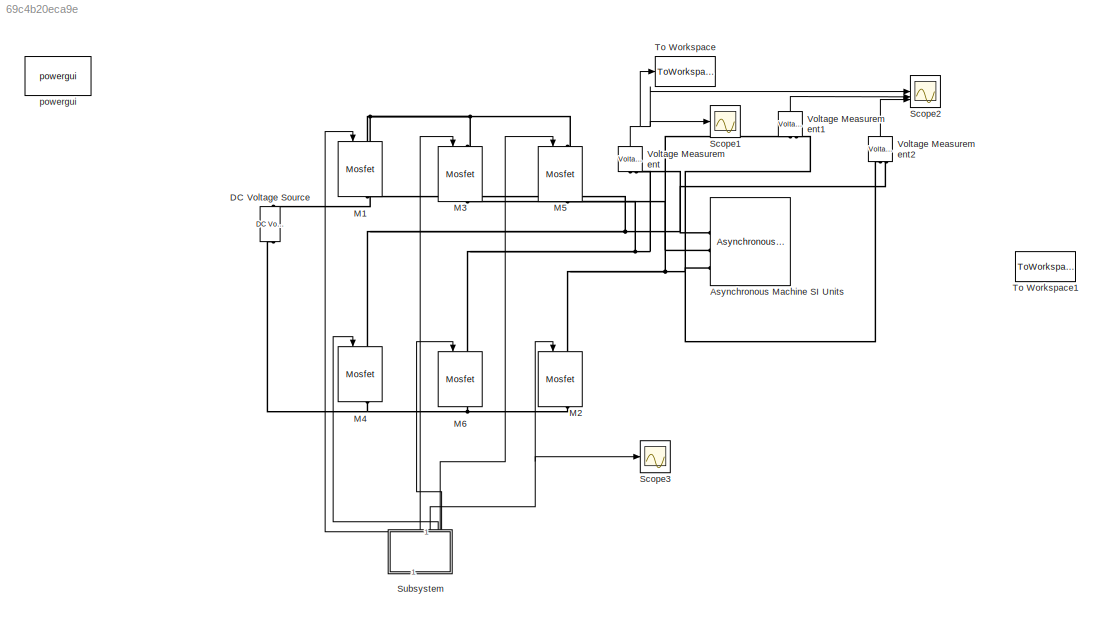
MODEL mdl_69c4b20eca9e
KIND model
CONFIG AbsTol = auto
CONFIG EnableMultiTasking = on
CONFIG FixedStep = auto
CONFIG MaxStep = auto
CONFIG MinStep = auto
CONFIG RelTol = 1e-3
CONFIG SampleTimeConstraint = Unconstrained
CONFIG SolverName = ode15s
CONFIG StartTime = 0.0
CONFIG StopTime = 1
BLOCK [Reference] Asynchronous Machine SI Units  REF=spsAsynchronousMachineSIUnitsLib/Asynchronous Machine
SI Units
  LibrarySourceBlock = sps_lib/Electrical Machines/Asynchronous Machine\nSI Units
  SourceBlock = spsAsynchronousMachineSIUnitsLib/Asynchronous Machine\nSI Units
  SourceType = Asynchronous Machine
BLOCK [Reference] DC Voltage Source   REF=spsDCVoltageSourceLib/DC Voltage Source
  LibrarySourceBlock = sps_lib/Sources/DC Voltage Source
  NameLocation = left
  SourceBlock = spsDCVoltageSourceLib/DC Voltage Source
  SourceType = DC Voltage Source
BLOCK [Reference] M1  REF=spsMosfetLib/Mosfet
  LibrarySourceBlock = sps_lib/Power Electronics/Mosfet
  NameLocation = left
  SourceBlock = spsMosfetLib/Mosfet
  SourceType = Mosfet
BLOCK [Reference] M2  REF=spsMosfetLib/Mosfet
  LibrarySourceBlock = sps_lib/Power Electronics/Mosfet
  NameLocation = left
  SourceBlock = spsMosfetLib/Mosfet
  SourceType = Mosfet
BLOCK [Reference] M3  REF=spsMosfetLib/Mosfet
  LibrarySourceBlock = sps_lib/Power Electronics/Mosfet
  NameLocation = left
  SourceBlock = spsMosfetLib/Mosfet
  SourceType = Mosfet
BLOCK [Reference] M4  REF=spsMosfetLib/Mosfet
  LibrarySourceBlock = sps_lib/Power Electronics/Mosfet
  NameLocation = left
  SourceBlock = spsMosfetLib/Mosfet
  SourceType = Mosfet
BLOCK [Reference] M5  REF=spsMosfetLib/Mosfet
  LibrarySourceBlock = sps_lib/Power Electronics/Mosfet
  NameLocation = left
  SourceBlock = spsMosfetLib/Mosfet
  SourceType = Mosfet
BLOCK [Reference] M6  REF=spsMosfetLib/Mosfet
  LibrarySourceBlock = sps_lib/Power Electronics/Mosfet
  NameLocation = left
  SourceBlock = spsMosfetLib/Mosfet
  SourceType = Mosfet
BLOCK [Scope] Scope1
  Floating = off
  NumInputPorts = 1
  ScopeSpecificationString = Simulink.scopes.TimeScopeBlockCfg('CurrentConfiguration', extmgr.ConfigurationSet(extmgr.Configuration('Core','General UI',true,'FigureColor',[0.941176470588235 0.941176470588235 0.941176470588235]),extmgr.Configuration('Core','Source UI',true),extmgr.Configuration('Sources','WiredSimulink',true,'DataLogging',true,'DataLoggingVariableName','q','DataLoggingSaveFormat','StructureWithTime','DataLoggi...<+2095ch>
BLOCK [Scope] Scope2
  Floating = off
  NumInputPorts = 3
  ScopeSpecificationString = Simulink.scopes.TimeScopeBlockCfg('CurrentConfiguration', extmgr.ConfigurationSet(extmgr.Configuration('Core','General UI',true),extmgr.Configuration('Core','Source UI',true),extmgr.Configuration('Sources','WiredSimulink',true,'DataLogging',true,'DataLoggingVariableName','q1','DataLoggingSaveFormat','StructureWithTime','DataLoggingMaxPoints','500000000','DataLoggingLimitDataPoints',true,'DataLoggi...<+3222ch>
BLOCK [Scope] Scope3
  Floating = off
  NumInputPorts = 1
  ScopeSpecificationString = Simulink.scopes.TimeScopeBlockCfg('CurrentConfiguration', extmgr.ConfigurationSet(extmgr.Configuration('Core','General UI',true,'FigureColor',[0.941176470588235 0.941176470588235 0.941176470588235]),extmgr.Configuration('Core','Source UI',true),extmgr.Configuration('Sources','WiredSimulink',true,'DataLogging',true,'DataLoggingVariableName','q2','DataLoggingSaveFormat','StructureWithTime','DataLogg...<+2070ch>
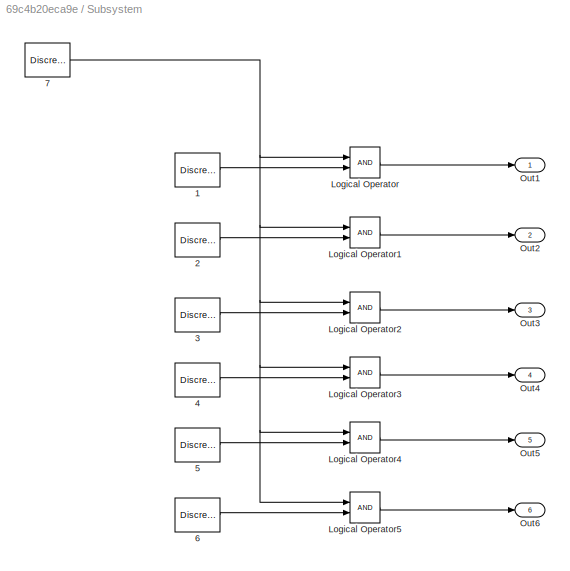
BLOCK [SubSystem] Subsystem
  NameLocation = right
BLOCK [DiscretePulseGenerator] Subsystem/1
  Period = 0.02
  PulseType = Time based
  PulseWidth = 33.33
BLOCK [DiscretePulseGenerator] Subsystem/2
  Period = 0.02
  PhaseDelay = 0.0033
  PulseType = Time based
  PulseWidth = 33.33
BLOCK [DiscretePulseGenerator] Subsystem/3
  Period = 0.02
  PhaseDelay = 0.0066
  PulseType = Time based
  PulseWidth = 33.33
BLOCK [DiscretePulseGenerator] Subsystem/4
  Period = 0.02
  PhaseDelay = 0.01
  PulseType = Time based
  PulseWidth = 33.33
BLOCK [DiscretePulseGenerator] Subsystem/5
  Period = 0.02
  PhaseDelay = 0.0133
  PulseType = Time based
  PulseWidth = 33.33
BLOCK [DiscretePulseGenerator] Subsystem/6
  Period = 0.02
  PhaseDelay = 0.0166
  PulseType = Time based
  PulseWidth = 33.33
BLOCK [DiscretePulseGenerator] Subsystem/7
  Period = 0.0001
  PulseType = Time based
  PulseWidth = 50
BLOCK [Logic] Subsystem/Logical Operator
  AllPortsSameDT = off
  NameLocation = top
  OutDataTypeStr = boolean
BLOCK [Logic] Subsystem/Logical Operator1
  AllPortsSameDT = off
  NameLocation = top
  OutDataTypeStr = boolean
BLOCK [Logic] Subsystem/Logical Operator2
  AllPortsSameDT = off
  NameLocation = top
  OutDataTypeStr = boolean
BLOCK [Logic] Subsystem/Logical Operator3
  AllPortsSameDT = off
  NameLocation = top
  OutDataTypeStr = boolean
BLOCK [Logic] Subsystem/Logical Operator4
  AllPortsSameDT = off
  OutDataTypeStr = boolean
BLOCK [Logic] Subsystem/Logical Operator5
  AllPortsSameDT = off
  OutDataTypeStr = boolean
BLOCK [Outport] Subsystem/Out1
  NameLocation = top
BLOCK [Outport] Subsystem/Out2
  Port = 2
BLOCK [Outport] Subsystem/Out3
  Port = 3
BLOCK [Outport] Subsystem/Out4
  Port = 4
BLOCK [Outport] Subsystem/Out5
  Port = 5
BLOCK [Outport] Subsystem/Out6
  Port = 6
BLOCK [ToWorkspace] To Workspace
  MaxDataPoints = inf
  SampleTime = -1
  SaveFormat = Structure With Time
  VariableName = v
BLOCK [ToWorkspace] To Workspace1
  MaxDataPoints = inf
  SampleTime = -1
  SaveFormat = Structure
  VariableName = simout
BLOCK [Reference] Voltage Measurement  REF=spsVoltageMeasurementLib/Voltage Measurement
  LibrarySourceBlock = sps_lib/Sensors and Measurements/Voltage Measurement
  NameLocation = right
  SourceBlock = spsVoltageMeasurementLib/Voltage Measurement
  SourceType = Voltage Measurement
BLOCK [Reference] Voltage Measurement1  REF=spsVoltageMeasurementLib/Voltage Measurement
  LibrarySourceBlock = sps_lib/Sensors and Measurements/Voltage Measurement
  NameLocation = right
  SourceBlock = spsVoltageMeasurementLib/Voltage Measurement
  SourceType = Voltage Measurement
BLOCK [Reference] Voltage Measurement2  REF=spsVoltageMeasurementLib/Voltage Measurement
  LibrarySourceBlock = sps_lib/Sensors and Measurements/Voltage Measurement
  NameLocation = right
  SourceBlock = spsVoltageMeasurementLib/Voltage Measurement
  SourceType = Voltage Measurement
BLOCK [Reference] powergui  REF=sps_lib/powergui
  Priority = 1
  SourceBlock = sps_lib/powergui
  SourceType = PSB option menu block
LINE Subsystem/1:1 -> Subsystem/Logical Operator:2
LINE Subsystem/2:1 -> Subsystem/Logical Operator1:2
LINE Subsystem/3:1 -> Subsystem/Logical Operator2:2
LINE Subsystem/4:1 -> Subsystem/Logical Operator3:2
LINE Subsystem/5:1 -> Subsystem/Logical Operator4:2
LINE Subsystem/6:1 -> Subsystem/Logical Operator5:2
NET Subsystem/7:1 -> Subsystem/Logical Operator1:1, Subsystem/Logical Operator2:1, Subsystem/Logical Operator3:1, Subsystem/Logical Operator4:1, Subsystem/Logical Operator5:1, Subsystem/Logical Operator:1
LINE Subsystem/Logical Operator1:1 -> Subsystem/Out2:1
LINE Subsystem/Logical Operator2:1 -> Subsystem/Out3:1
LINE Subsystem/Logical Operator3:1 -> Subsystem/Out4:1
LINE Subsystem/Logical Operator4:1 -> Subsystem/Out5:1
LINE Subsystem/Logical Operator5:1 -> Subsystem/Out6:1
LINE Subsystem/Logical Operator:1 -> Subsystem/Out1:1
LINE Subsystem:1 -> M1:1
NET Subsystem:2 -> M2:1, Scope3:1
LINE Subsystem:3 -> M3:1
LINE Subsystem:4 -> M4:1
LINE Subsystem:5 -> M5:1
LINE Subsystem:6 -> M6:1
LINE Voltage Measurement1:1 -> Scope2:2
LINE Voltage Measurement2:1 -> Scope2:3
NET Voltage Measurement:1 -> Scope1:1, Scope2:1, To Workspace:1
PNET net1: Asynchronous Machine SI Units:LConn1 -- M1:RConn1 -- M4:LConn1 -- Voltage Measurement2:LConn2 -- Voltage Measurement:LConn1
PNET net2: Asynchronous Machine SI Units:LConn2 -- M3:RConn1 -- M6:LConn1 -- Voltage Measurement1:LConn1 -- Voltage Measurement:LConn2
PNET net3: Asynchronous Machine SI Units:LConn3 -- M2:LConn1 -- M5:RConn1 -- Voltage Measurement1:LConn2 -- Voltage Measurement2:LConn1
PNET net4: DC Voltage Source :LConn1 -- M2:RConn1 -- M4:RConn1 -- M6:RConn1
PNET net5: DC Voltage Source :RConn1 -- M1:LConn1 -- M3:LConn1 -- M5:LConn1
note: NET lines group one-source signal fan-out (src -> all destinations, sorted); 1:1 wires keep LINE; PNET lines group multi-terminal physical nets as a canonical sorted terminal list (undirected conserving connections); 2-terminal nets keep the pairwise PLINE form
